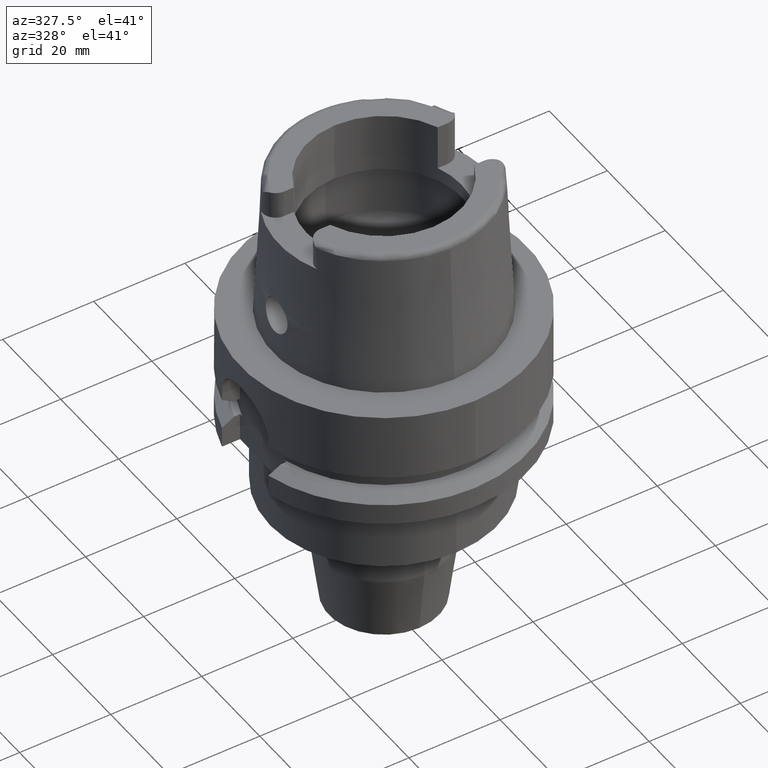
[diagram: clean part render]
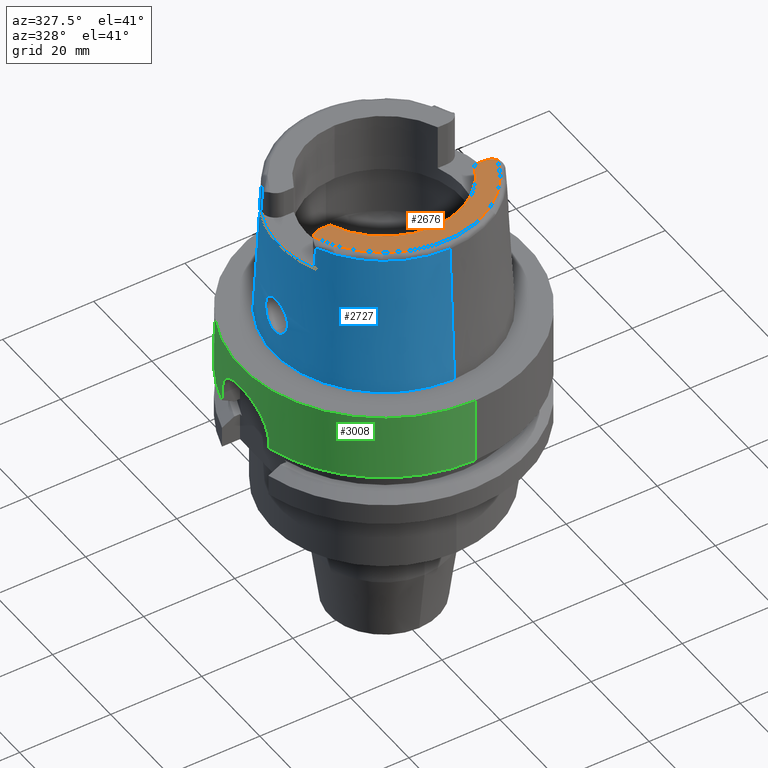
[diagram: same view with three faces highlighted in distinct colors, each labeled with its STEP entity id]
A machine part, auxiliary view with three faces highlighted in distinct colors.
Their STEP definitions:

[orange] entity #2676 — the highlighted planar face has unit normal (0, 0, 1).
#99=DIRECTION('',(-1.E0,8.644330667353E-14,0.E0));
#100=VECTOR('',#99,2.188509563969E0);
#101=CARTESIAN_POINT('',(-1.580149043603E1,-6.27E0,3.2E1));
#102=LINE('',#101,#100);
#106=CARTESIAN_POINT('',(-1.799E1,-9.15E0,3.2E1));
#107=DIRECTION('',(0.E0,0.E0,-1.E0));
#108=DIRECTION('',(-7.912216523764E-1,6.115294733787E-1,0.E0));
#109=AXIS2_PLACEMENT_3D('',#106,#107,#108);
#114=CARTESIAN_POINT('',(0.E0,0.E0,3.2E1));
#115=DIRECTION('',(0.E0,0.E0,1.E0));
#116=DIRECTION('',(-9.294994374136E-1,-3.688235294118E-1,0.E0));
#117=AXIS2_PLACEMENT_3D('',#114,#115,#116);
#122=CARTESIAN_POINT('',(0.E0,0.E0,3.2E1));
#123=DIRECTION('',(0.E0,0.E0,1.E0));
#124=DIRECTION('',(0.E0,-1.E0,0.E0));
#125=AXIS2_PLACEMENT_3D('',#122,#123,#124);
#130=CARTESIAN_POINT('',(1.799E1,-9.15E0,3.2E1));
#131=DIRECTION('',(0.E0,0.E0,-1.E0));
#132=DIRECTION('',(0.E0,1.E0,0.E0));
#133=AXIS2_PLACEMENT_3D('',#130,#131,#132);
#138=CARTESIAN_POINT('',(0.E0,0.E0,3.2E1));
#139=DIRECTION('',(0.E0,0.E0,-1.E0));
#140=DIRECTION('',(9.395199128801E-1,-3.424942821446E-1,0.E0));
#141=AXIS2_PLACEMENT_3D('',#138,#139,#140);
#323=DIRECTION('',(-1.E0,-8.806665515566E-14,0.E0));
#324=VECTOR('',#323,2.188509563969E0);
#325=CARTESIAN_POINT('',(1.799E1,-6.27E0,3.2E1));
#326=LINE('',#325,#324);
#2277=CARTESIAN_POINT('',(0.E0,-1.7E1,3.2E1));
#2278=VERTEX_POINT('',#2277);
#2279=CARTESIAN_POINT('',(-1.580149043603E1,-6.27E0,3.2E1));
#2280=VERTEX_POINT('',#2279);
#2293=CARTESIAN_POINT('',(-1.799E1,-6.27E0,3.2E1));
#2294=VERTEX_POINT('',#2293);
#2305=CARTESIAN_POINT('',(-2.026871835884E1,-7.388795116669E0,3.2E1));
#2306=VERTEX_POINT('',#2305);
#2307=CARTESIAN_POINT('',(1.580149043603E1,-6.27E0,3.2E1));
#2308=VERTEX_POINT('',#2307);
#2309=CARTESIAN_POINT('',(1.799E1,-6.27E0,3.2E1));
#2310=VERTEX_POINT('',#2309);
#2311=CARTESIAN_POINT('',(2.026871835884E1,-7.388795116670E0,3.2E1));
#2312=VERTEX_POINT('',#2311);
#2657=CARTESIAN_POINT('',(0.E0,0.E0,3.2E1));
#2658=DIRECTION('',(0.E0,0.E0,1.E0));
#2659=DIRECTION('',(0.E0,1.E0,0.E0));
#2660=AXIS2_PLACEMENT_3D('',#2657,#2658,#2659);
#2661=PLANE('',#2660);
#2663=ORIENTED_EDGE('',*,*,#2662,.T.);
#2664=ORIENTED_EDGE('',*,*,#2649,.F.);
#2665=ORIENTED_EDGE('',*,*,#2613,.T.);
#2667=ORIENTED_EDGE('',*,*,#2666,.T.);
#2669=ORIENTED_EDGE('',*,*,#2668,.F.);
#2671=ORIENTED_EDGE('',*,*,#2670,.T.);
#2673=ORIENTED_EDGE('',*,*,#2672,.T.);
#2674=EDGE_LOOP('',(#2663,#2664,#2665,#2667,#2669,#2671,#2673));
#2675=FACE_OUTER_BOUND('',#2674,.F.);
#110=CIRCLE('',#109,2.88E0);
#118=CIRCLE('',#117,1.7E1);
#126=CIRCLE('',#125,1.7E1);
#134=CIRCLE('',#133,2.88E0);
#142=CIRCLE('',#141,2.157348458609E1);
#2613=EDGE_CURVE('',#2280,#2278,#118,.T.);
#2649=EDGE_CURVE('',#2280,#2294,#102,.T.);
#2662=EDGE_CURVE('',#2306,#2294,#110,.T.);
#2666=EDGE_CURVE('',#2278,#2308,#126,.T.);
#2668=EDGE_CURVE('',#2310,#2308,#326,.T.);
#2670=EDGE_CURVE('',#2310,#2312,#134,.T.);
#2672=EDGE_CURVE('',#2312,#2306,#142,.T.);
#2676=ADVANCED_FACE('',(#2675),#2661,.T.);

[blue] entity #2727 — the highlighted conical surface has half-angle 2.862 deg.
#69=CARTESIAN_POINT('',(0.E0,0.E0,2.6E1));
#70=DIRECTION('',(0.E0,0.E0,-1.E0));
#71=DIRECTION('',(-9.068002397791E-1,-4.215605829967E-1,0.E0));
#72=AXIS2_PLACEMENT_3D('',#69,#70,#71);
#160=CARTESIAN_POINT('',(-2.086999931535E1,-9.702216590561E0,2.6E1));
#161=CARTESIAN_POINT('',(-2.086999931535E1,-9.642048820361E0,2.650727061302E1));
#162=CARTESIAN_POINT('',(-2.087000013188E1,-9.520999784311E0,2.752034962291E1));
#163=CARTESIAN_POINT('',(-2.087000056538E1,-9.336893546791E0,2.903557629453E1));
#164=CARTESIAN_POINT('',(-2.086999859286E1,-9.212633972085E0,3.004273962856E1));
#165=CARTESIAN_POINT('',(-2.086999859286E1,-9.150003160547E0,3.054568941686E1));
#170=CARTESIAN_POINT('',(-2.086999859286E1,-9.150003160547E0,3.054568941686E1));
#171=CARTESIAN_POINT('',(-2.086999859286E1,-9.145656142288E0,3.058059766505E1));
#172=CARTESIAN_POINT('',(-2.086998097130E1,-9.136996582018E0,3.065033329798E1));
#173=CARTESIAN_POINT('',(-2.086989310984E1,-9.124125562953E0,3.075513688830E1));
#174=CARTESIAN_POINT('',(-2.086979783655E1,-9.115619586658E0,3.082499216186E1));
#175=CARTESIAN_POINT('',(-2.086974104082E1,-9.111384060100E0,3.085992587382E1));
#180=DIRECTION('',(0.E0,-4.993926899645E-2,-9.987522562738E-1));
#181=VECTOR('',#180,3.089848050800E1);
#182=CARTESIAN_POINT('',(0.E0,-2.277198729362E1,3.085992712280E1));
#183=LINE('',#182,#181);
#187=CARTESIAN_POINT('',(-2.086974110884E1,9.111383541160E0,3.085992743297E1));
#188=CARTESIAN_POINT('',(-2.086979790994E1,9.115619351630E0,3.082499135271E1));
#189=CARTESIAN_POINT('',(-2.086989332434E1,9.124125752771E0,3.075512690548E1));
#190=CARTESIAN_POINT('',(-2.086998013697E1,9.136999223120E0,3.065036981059E1));
#191=CARTESIAN_POINT('',(-2.087000040551E1,9.145651821176E0,3.058051936383E1));
#192=CARTESIAN_POINT('',(-2.087000040551E1,9.149999089201E0,3.054560915664E1));
#197=CARTESIAN_POINT('',(-2.087000040551E1,9.149999089201E0,3.054560915664E1));
#198=CARTESIAN_POINT('',(-2.087000040551E1,9.212612082852E0,3.004280312577E1));
#199=CARTESIAN_POINT('',(-2.087000020370E1,9.336923098287E0,2.903562847774E1));
#200=CARTESIAN_POINT('',(-2.086999867880E1,9.521029051541E0,2.752042416354E1));
#201=CARTESIAN_POINT('',(-2.087000294700E1,9.642028220330E0,2.650729690937E1));
#202=CARTESIAN_POINT('',(-2.087000294700E1,9.702199254904E0,2.6E1));
#207=CARTESIAN_POINT('',(-2.405252611747E1,7.753366781648E-14,5.25E0));
#208=CARTESIAN_POINT('',(-2.405252611747E1,-2.983629815367E-1,5.25E0));
#209=CARTESIAN_POINT('',(-2.403759799135E1,-8.961018290316E-1,
5.321776949866E0));
#210=CARTESIAN_POINT('',(-2.397447440240E1,-1.741926226861E0,5.638186774740E0));
#211=CARTESIAN_POINT('',(-2.388062072493E1,-2.496397334420E0,6.152590040285E0));
#212=CARTESIAN_POINT('',(-2.377309800171E1,-3.106949365202E0,6.834341896780E0));
#213=CARTESIAN_POINT('',(-2.367028886150E1,-3.538310063109E0,7.649796871211E0));
#214=CARTESIAN_POINT('',(-2.359066284660E1,-3.758485061680E0,8.537441117560E0));
#215=CARTESIAN_POINT('',(-2.354414989533E1,-3.759354895679E0,9.452819881269E0));
#216=CARTESIAN_POINT('',(-2.353371335133E1,-3.543673124263E0,1.033330566560E1));
#217=CARTESIAN_POINT('',(-2.355357008821E1,-3.124309553114E0,1.113832511195E1));
#218=CARTESIAN_POINT('',(-2.359224647702E1,-2.528027371299E0,1.181947570822E1));
#219=CARTESIAN_POINT('',(-2.363616440138E1,-1.769185514866E0,1.234926733547E1));
#220=CARTESIAN_POINT('',(-2.366940988559E1,-9.074805174541E-1,
1.267673524819E1));
#221=CARTESIAN_POINT('',(-2.367751368058E1,-3.018728104204E-1,1.275E1));
#222=CARTESIAN_POINT('',(-2.367751368058E1,0.E0,1.275E1));
#227=CARTESIAN_POINT('',(-2.367751368058E1,0.E0,1.275E1));
#228=CARTESIAN_POINT('',(-2.367751368058E1,3.009620480477E-1,1.275E1));
#229=CARTESIAN_POINT('',(-2.366945437572E1,9.043356862045E-1,1.267710807503E1));
#230=CARTESIAN_POINT('',(-2.363653071782E1,1.761167725127E0,1.235299167880E1));
#231=CARTESIAN_POINT('',(-2.359289117643E1,2.517930243470E0,1.182808447992E1));
#232=CARTESIAN_POINT('',(-2.355410512668E1,3.115618229274E0,1.115109512899E1));
#233=CARTESIAN_POINT('',(-2.353374050285E1,3.539883651809E0,1.034442728618E1));
#234=CARTESIAN_POINT('',(-2.354389268323E1,3.757980069635E0,9.462273260167E0));
#235=CARTESIAN_POINT('',(-2.358959342546E1,3.759759824688E0,8.554435323220E0));
#236=CARTESIAN_POINT('',(-2.366772333814E1,3.546890154093E0,7.674289460787E0));
#237=CARTESIAN_POINT('',(-2.376944026279E1,3.124538664881E0,6.860013219001E0));
#238=CARTESIAN_POINT('',(-2.387746588807E1,2.517820684655E0,6.170704871594E0));
#239=CARTESIAN_POINT('',(-2.397311171621E1,1.757542030497E0,5.645060882554E0));
#240=CARTESIAN_POINT('',(-2.403756404153E1,8.999352463688E-1,5.321912240457E0));
#241=CARTESIAN_POINT('',(-2.405252611747E1,2.990540645366E-1,5.25E0));
#242=CARTESIAN_POINT('',(-2.405252611747E1,7.753366781648E-14,5.25E0));
#293=CARTESIAN_POINT('',(0.E0,0.E0,3.085992712280E1));
#294=DIRECTION('',(0.E0,0.E0,-1.E0));
#295=DIRECTION('',(0.E0,-1.E0,0.E0));
#296=AXIS2_PLACEMENT_3D('',#293,#294,#295);
#301=CARTESIAN_POINT('',(0.E0,0.E0,3.085992712280E1));
#302=DIRECTION('',(0.E0,0.E0,-1.E0));
#303=DIRECTION('',(-6.539142454762E-4,-9.999997861981E-1,0.E0));
#304=AXIS2_PLACEMENT_3D('',#301,#302,#303);
#498=CARTESIAN_POINT('',(0.E0,0.E0,3.085992712280E1));
#499=DIRECTION('',(0.E0,0.E0,-1.E0));
#500=DIRECTION('',(-9.164655183266E-1,4.001136759952E-1,0.E0));
#501=AXIS2_PLACEMENT_3D('',#498,#499,#500);
#561=DIRECTION('',(0.E0,4.993926899645E-2,-9.987522562738E-1));
#562=VECTOR('',#561,3.089848050800E1);
#563=CARTESIAN_POINT('',(0.E0,2.277198729362E1,3.085992712280E1));
#564=LINE('',#563,#562);
#666=CARTESIAN_POINT('',(0.E0,0.E0,-1.705302565824E-12));
#667=DIRECTION('',(0.E0,0.E0,1.E0));
#668=DIRECTION('',(0.E0,1.E0,0.E0));
#669=AXIS2_PLACEMENT_3D('',#666,#667,#668);
#2285=CARTESIAN_POINT('',(-2.086999931535E1,-9.702216590561E0,2.6E1));
#2286=VERTEX_POINT('',#2285);
#2287=CARTESIAN_POINT('',(-2.087E1,9.702213322399E0,2.6E1));
#2288=VERTEX_POINT('',#2287);
#2313=VERTEX_POINT('',#187);
#2314=VERTEX_POINT('',#192);
#2315=VERTEX_POINT('',#165);
#2316=VERTEX_POINT('',#175);
#2317=CARTESIAN_POINT('',(-1.489092688910E-2,-2.277198242492E1,
3.085992712280E1));
#2318=VERTEX_POINT('',#2317);
#2319=CARTESIAN_POINT('',(0.E0,-2.277198729362E1,3.085992712280E1));
#2320=VERTEX_POINT('',#2319);
#2321=CARTESIAN_POINT('',(0.E0,-2.431503482329E1,-9.841016890277E-13));
#2322=VERTEX_POINT('',#2321);
#2323=CARTESIAN_POINT('',(0.E0,2.431503482329E1,-1.705302565824E-12));
#2324=VERTEX_POINT('',#2323);
#2325=CARTESIAN_POINT('',(0.E0,2.277198729362E1,3.085992712280E1));
#2326=VERTEX_POINT('',#2325);
#2327=VERTEX_POINT('',#207);
#2328=VERTEX_POINT('',#222);
#2694=CARTESIAN_POINT('',(0.E0,0.E0,1.542996356140E1));
#2695=DIRECTION('',(0.E0,0.E0,-1.E0));
#2696=DIRECTION('',(0.E0,-1.E0,0.E0));
#2697=AXIS2_PLACEMENT_3D('',#2694,#2695,#2696);
#2698=CONICAL_SURFACE('',#2697,2.354351105845E1,2.8625E0);
#2699=ORIENTED_EDGE('',*,*,#2632,.F.);
#2701=ORIENTED_EDGE('',*,*,#2700,.T.);
#2702=ORIENTED_EDGE('',*,*,#2682,.T.);
#2704=ORIENTED_EDGE('',*,*,#2703,.F.);
#2706=ORIENTED_EDGE('',*,*,#2705,.F.);
#2708=ORIENTED_EDGE('',*,*,#2707,.T.);
#2710=ORIENTED_EDGE('',*,*,#2709,.F.);
#2712=ORIENTED_EDGE('',*,*,#2711,.F.);
#2714=ORIENTED_EDGE('',*,*,#2713,.F.);
#2716=ORIENTED_EDGE('',*,*,#2715,.T.);
#2718=ORIENTED_EDGE('',*,*,#2717,.T.);
#2719=EDGE_LOOP('',(#2699,#2701,#2702,#2704,#2706,#2708,#2710,#2712,#2714,#2716,
#2718));
#2720=FACE_OUTER_BOUND('',#2719,.F.);
#2722=ORIENTED_EDGE('',*,*,#2721,.T.);
#2724=ORIENTED_EDGE('',*,*,#2723,.T.);
#2725=EDGE_LOOP('',(#2722,#2724));
#2726=FACE_BOUND('',#2725,.F.);
#73=CIRCLE('',#72,2.301499170874E1);
#166=B_SPLINE_CURVE_WITH_KNOTS('',3,(#160,#161,#162,#163,#164,#165),
.UNSPECIFIED.,.F.,.F.,(4,1,1,4),(0.E0,3.333333333333E-1,6.666666666667E-1,1.E0),
.UNSPECIFIED.);
#176=B_SPLINE_CURVE_WITH_KNOTS('',3,(#170,#171,#172,#173,#174,#175),
.UNSPECIFIED.,.F.,.F.,(4,1,1,4),(0.E0,3.333333333333E-1,6.666666666667E-1,1.E0),
.UNSPECIFIED.);
#193=B_SPLINE_CURVE_WITH_KNOTS('',3,(#187,#188,#189,#190,#191,#192),
.UNSPECIFIED.,.F.,.F.,(4,1,1,4),(0.E0,3.333333333333E-1,6.666666666667E-1,1.E0),
.UNSPECIFIED.);
#203=B_SPLINE_CURVE_WITH_KNOTS('',3,(#197,#198,#199,#200,#201,#202),
.UNSPECIFIED.,.F.,.F.,(4,1,1,4),(0.E0,3.333333333333E-1,6.666666666667E-1,1.E0),
.UNSPECIFIED.);
#223=B_SPLINE_CURVE_WITH_KNOTS('',3,(#207,#208,#209,#210,#211,#212,#213,#214,
#215,#216,#217,#218,#219,#220,#221,#222),.UNSPECIFIED.,.F.,.F.,(4,1,1,1,1,1,1,1,
1,1,1,1,1,4),(0.E0,7.692307692308E-2,1.538461538462E-1,2.307692307692E-1,
3.076923076923E-1,3.846153846154E-1,4.615384615385E-1,5.384615384615E-1,
6.153846153846E-1,6.923076923077E-1,7.692307692308E-1,8.461538461538E-1,
9.230769230769E-1,1.E0),.UNSPECIFIED.);
#243=B_SPLINE_CURVE_WITH_KNOTS('',3,(#227,#228,#229,#230,#231,#232,#233,#234,
#235,#236,#237,#238,#239,#240,#241,#242),.UNSPECIFIED.,.F.,.F.,(4,1,1,1,1,1,1,1,
1,1,1,1,1,4),(0.E0,7.692307692308E-2,1.538461538462E-1,2.307692307692E-1,
3.076923076923E-1,3.846153846154E-1,4.615384615385E-1,5.384615384615E-1,
6.153846153846E-1,6.923076923077E-1,7.692307692308E-1,8.461538461538E-1,
9.230769230769E-1,1.E0),.UNSPECIFIED.);
#297=CIRCLE('',#296,2.277198729362E1);
#305=CIRCLE('',#304,2.277198729362E1);
#502=CIRCLE('',#501,2.277198729362E1);
#670=CIRCLE('',#669,2.431503482329E1);
#2632=EDGE_CURVE('',#2286,#2288,#73,.T.);
#2682=EDGE_CURVE('',#2315,#2316,#176,.T.);
#2700=EDGE_CURVE('',#2286,#2315,#166,.T.);
#2703=EDGE_CURVE('',#2318,#2316,#305,.T.);
#2705=EDGE_CURVE('',#2320,#2318,#297,.T.);
#2707=EDGE_CURVE('',#2320,#2322,#183,.T.);
#2709=EDGE_CURVE('',#2324,#2322,#670,.T.);
#2711=EDGE_CURVE('',#2326,#2324,#564,.T.);
#2713=EDGE_CURVE('',#2313,#2326,#502,.T.);
#2715=EDGE_CURVE('',#2313,#2314,#193,.T.);
#2717=EDGE_CURVE('',#2314,#2288,#203,.T.);
#2721=EDGE_CURVE('',#2327,#2328,#223,.T.);
#2723=EDGE_CURVE('',#2328,#2327,#243,.T.);
#2727=ADVANCED_FACE('',(#2720,#2726),#2698,.T.);

[green] entity #3008 — the highlighted cylindrical surface (partial cylindrical patch) has radius 31.5 mm, axis along (0, 0, 1).
#642=CARTESIAN_POINT('',(0.E0,0.E0,-1.421085471520E-14));
#643=DIRECTION('',(0.E0,0.E0,-1.E0));
#644=DIRECTION('',(0.E0,-1.E0,0.E0));
#645=AXIS2_PLACEMENT_3D('',#642,#643,#644);
#674=DIRECTION('',(-1.431540360012E-6,-1.176472697512E-6,-9.999999999983E-1));
#675=VECTOR('',#674,9.622451541726E0);
#676=CARTESIAN_POINT('',(-2.E1,2.433618704728E1,-5.000000000001E0));
#677=LINE('',#676,#675);
#681=DIRECTION('',(0.E0,-2.672583210396E-14,-1.E0));
#682=VECTOR('',#681,1.462250092524E1);
#683=CARTESIAN_POINT('',(0.E0,-3.15E1,1.894780628694E-14));
#684=LINE('',#683,#682);
#688=DIRECTION('',(-7.652368237102E-8,2.914370082179E-7,1.E0));
#689=VECTOR('',#688,1.622496632714E0);
#690=CARTESIAN_POINT('',(-3.046719534900E1,-8.000000472856E0,
-1.462249663271E1));
#691=LINE('',#690,#689);
#695=DIRECTION('',(-1.697581195195E-8,-6.464639300305E-8,-1.E0));
#696=VECTOR('',#695,1.622501877402E0);
#697=CARTESIAN_POINT('',(-3.046719547316E1,8.E0,-1.3E1));
#698=LINE('',#697,#696);
#702=DIRECTION('',(9.894060569839E-7,1.203919407604E-6,9.999999999988E-1));
#703=VECTOR('',#702,2.510797856236E0);
#704=CARTESIAN_POINT('',(-2.433618953148E1,1.999999697720E1,-1.462251175989E1));
#705=LINE('',#704,#703);
#709=CARTESIAN_POINT('',(-2.433618704728E1,2.E1,-1.211171390366E1));
#710=CARTESIAN_POINT('',(-2.433618704728E1,2.E1,-1.187977372849E1));
#711=CARTESIAN_POINT('',(-2.431967290052E1,2.002011943088E1,-1.141747341825E1));
#712=CARTESIAN_POINT('',(-2.424524770411E1,2.011034050355E1,-1.072771821829E1));
#713=CARTESIAN_POINT('',(-2.411964511851E1,2.026106731111E1,-1.004479280919E1));
#714=CARTESIAN_POINT('',(-2.394165815227E1,2.047144447062E1,-9.375611571982E0));
#715=CARTESIAN_POINT('',(-2.370768283585E1,2.074243216496E1,-8.721132766513E0));
#716=CARTESIAN_POINT('',(-2.341497015444E1,2.107290139819E1,-8.088372014913E0));
#717=CARTESIAN_POINT('',(-2.305738752231E1,2.146431457704E1,-7.479003601040E0));
#718=CARTESIAN_POINT('',(-2.262953392187E1,2.191581789721E1,-6.899684978560E0));
#719=CARTESIAN_POINT('',(-2.212344133567E1,2.242769127021E1,-6.355027245764E0));
#720=CARTESIAN_POINT('',(-2.152829938901E1,2.300087846520E1,-5.850146414540E0));
#721=CARTESIAN_POINT('',(-2.083305659176E1,2.363404649954E1,-5.392532518473E0));
#722=CARTESIAN_POINT('',(-2.029155541786E1,2.409658055733E1,-5.123440477687E0));
#723=CARTESIAN_POINT('',(-2.E1,2.433618704728E1,-5.000000000001E0));
#740=CARTESIAN_POINT('',(-2.000001377493E1,2.433617572673E1,-1.462245154171E1));
#821=CARTESIAN_POINT('',(-2.433618953148E1,1.999999697720E1,-1.462251175989E1));
#838=CARTESIAN_POINT('',(0.E0,0.E0,-1.462250092524E1));
#839=DIRECTION('',(0.E0,0.E0,1.E0));
#840=DIRECTION('',(-7.725773665802E-1,6.349206349206E-1,0.E0));
#841=AXIS2_PLACEMENT_3D('',#838,#839,#840);
#846=CARTESIAN_POINT('',(-3.046719550070E1,7.999999895111E0,-1.462250187740E1));
#870=CARTESIAN_POINT('',(-3.046719547316E1,8.E0,-1.3E1));
#871=CARTESIAN_POINT('',(-3.046719547316E1,8.E0,-1.245224009791E1));
#872=CARTESIAN_POINT('',(-3.049727302638E1,7.887058350244E0,-1.135073932770E1));
#873=CARTESIAN_POINT('',(-3.062689474047E1,7.375462160494E0,-9.752102891592E0));
#874=CARTESIAN_POINT('',(-3.082074443425E1,6.532773675591E0,-8.278876910032E0));
#875=CARTESIAN_POINT('',(-3.104430627716E1,5.390237509935E0,-7.006967026638E0));
#876=CARTESIAN_POINT('',(-3.125563060177E1,4.008871035996E0,-6.008196342126E0));
#877=CARTESIAN_POINT('',(-3.141705820568E1,2.464778745014E0,-5.328000599818E0));
#878=CARTESIAN_POINT('',(-3.150356819386E1,8.304199367557E-1,
-4.985634645714E0));
#879=CARTESIAN_POINT('',(-3.150352681394E1,-8.321668193317E-1,
-4.985822560260E0));
#880=CARTESIAN_POINT('',(-3.141693350906E1,-2.466336997352E0,
-5.328506033320E0));
#881=CARTESIAN_POINT('',(-3.125544512096E1,-4.010327316653E0,
-6.009023094849E0));
#882=CARTESIAN_POINT('',(-3.104408258012E1,-5.391520309843E0,
-7.008128831585E0));
#883=CARTESIAN_POINT('',(-3.082053941872E1,-6.533720743411E0,
-8.280182523155E0));
#884=CARTESIAN_POINT('',(-3.062672190153E1,-7.376197391333E0,
-9.753750358743E0));
#885=CARTESIAN_POINT('',(-3.049718863966E1,-7.887319804450E0,
-1.135225939251E1));
#886=CARTESIAN_POINT('',(-3.046719547316E1,-8.E0,-1.245284899224E1));
#887=CARTESIAN_POINT('',(-3.046719547316E1,-8.E0,-1.3E1));
#1331=CARTESIAN_POINT('',(0.E0,0.E0,-1.462250092524E1));
#1332=DIRECTION('',(0.E0,0.E0,1.E0));
#1333=DIRECTION('',(-9.672125547036E-1,-2.539682539683E-1,0.E0));
#1334=AXIS2_PLACEMENT_3D('',#1331,#1332,#1333);
#1401=DIRECTION('',(0.E0,2.672583210396E-14,-1.E0));
#1402=VECTOR('',#1401,1.462250092524E1);
#1403=CARTESIAN_POINT('',(0.E0,3.15E1,1.894780628694E-14));
#1404=LINE('',#1403,#1402);
#1462=CARTESIAN_POINT('',(0.E0,0.E0,-1.462250092524E1));
#1463=DIRECTION('',(0.E0,0.E0,1.E0));
#1464=DIRECTION('',(0.E0,1.E0,0.E0));
#1465=AXIS2_PLACEMENT_3D('',#1462,#1463,#1464);
#2471=VERTEX_POINT('',#740);
#2472=CARTESIAN_POINT('',(-2.E1,2.433618704728E1,-5.000000000001E0));
#2473=VERTEX_POINT('',#2472);
#2500=CARTESIAN_POINT('',(-3.046719547316E1,-8.E0,-1.3E1));
#2501=VERTEX_POINT('',#2500);
#2502=CARTESIAN_POINT('',(-3.046719534900E1,-8.000000472856E0,
-1.462249663271E1));
#2503=VERTEX_POINT('',#2502);
#2523=VERTEX_POINT('',#846);
#2524=CARTESIAN_POINT('',(-3.046719547316E1,8.E0,-1.3E1));
#2525=VERTEX_POINT('',#2524);
#2579=CARTESIAN_POINT('',(0.E0,-3.15E1,-1.462250092524E1));
#2580=VERTEX_POINT('',#2579);
#2582=CARTESIAN_POINT('',(0.E0,3.15E1,-1.462250092524E1));
#2583=VERTEX_POINT('',#2582);
#2584=VERTEX_POINT('',#821);
#2585=CARTESIAN_POINT('',(0.E0,3.15E1,1.894780628694E-14));
#2586=VERTEX_POINT('',#2585);
#2587=CARTESIAN_POINT('',(0.E0,-3.15E1,-1.421085471520E-14));
#2588=VERTEX_POINT('',#2587);
#2589=CARTESIAN_POINT('',(-2.433618704728E1,2.E1,-1.211171390366E1));
#2590=VERTEX_POINT('',#2589);
#2978=CARTESIAN_POINT('',(0.E0,0.E0,-7.51E1));
#2979=DIRECTION('',(0.E0,0.E0,1.E0));
#2980=DIRECTION('',(0.E0,1.E0,0.E0));
#2981=AXIS2_PLACEMENT_3D('',#2978,#2979,#2980);
#2982=CYLINDRICAL_SURFACE('',#2981,3.15E1);
#2984=ORIENTED_EDGE('',*,*,#2983,.T.);
#2986=ORIENTED_EDGE('',*,*,#2985,.F.);
#2988=ORIENTED_EDGE('',*,*,#2987,.F.);
#2989=ORIENTED_EDGE('',*,*,#2967,.F.);
#2991=ORIENTED_EDGE('',*,*,#2990,.T.);
#2993=ORIENTED_EDGE('',*,*,#2992,.F.);
#2995=ORIENTED_EDGE('',*,*,#2994,.T.);
#2997=ORIENTED_EDGE('',*,*,#2996,.F.);
#2999=ORIENTED_EDGE('',*,*,#2998,.T.);
#3001=ORIENTED_EDGE('',*,*,#3000,.F.);
#3003=ORIENTED_EDGE('',*,*,#3002,.T.);
#3005=ORIENTED_EDGE('',*,*,#3004,.T.);
#3006=EDGE_LOOP('',(#2984,#2986,#2988,#2989,#2991,#2993,#2995,#2997,#2999,#3001,
#3003,#3005));
#3007=FACE_OUTER_BOUND('',#3006,.F.);
#646=CIRCLE('',#645,3.15E1);
#724=B_SPLINE_CURVE_WITH_KNOTS('',3,(#709,#710,#711,#712,#713,#714,#715,#716,
#717,#718,#719,#720,#721,#722,#723),.UNSPECIFIED.,.F.,.F.,(4,1,1,1,1,1,1,1,1,1,
1,1,4),(0.E0,8.333333333333E-2,1.666666666667E-1,2.5E-1,3.333333333333E-1,
4.166666666667E-1,5.E-1,5.833333333333E-1,6.666666666667E-1,7.5E-1,
8.333333333333E-1,9.166666666667E-1,1.E0),.UNSPECIFIED.);
#842=CIRCLE('',#841,3.15E1);
#888=B_SPLINE_CURVE_WITH_KNOTS('',3,(#870,#871,#872,#873,#874,#875,#876,#877,
#878,#879,#880,#881,#882,#883,#884,#885,#886,#887),.UNSPECIFIED.,.F.,.F.,(4,1,1,
1,1,1,1,1,1,1,1,1,1,1,1,4),(0.E0,6.666666666667E-2,1.333333333333E-1,2.E-1,
2.666666666667E-1,3.333333333333E-1,4.E-1,4.666666666667E-1,5.333333333333E-1,
6.E-1,6.666666666667E-1,7.333333333333E-1,8.E-1,8.666666666667E-1,
9.333333333333E-1,1.E0),.UNSPECIFIED.);
#1335=CIRCLE('',#1334,3.15E1);
#1466=CIRCLE('',#1465,3.15E1);
#2967=EDGE_CURVE('',#2588,#2586,#646,.T.);
#2983=EDGE_CURVE('',#2473,#2471,#677,.T.);
#2985=EDGE_CURVE('',#2583,#2471,#1466,.T.);
#2987=EDGE_CURVE('',#2586,#2583,#1404,.T.);
#2990=EDGE_CURVE('',#2588,#2580,#684,.T.);
#2992=EDGE_CURVE('',#2503,#2580,#1335,.T.);
#2994=EDGE_CURVE('',#2503,#2501,#691,.T.);
#2996=EDGE_CURVE('',#2525,#2501,#888,.T.);
#2998=EDGE_CURVE('',#2525,#2523,#698,.T.);
#3000=EDGE_CURVE('',#2584,#2523,#842,.T.);
#3002=EDGE_CURVE('',#2584,#2590,#705,.T.);
#3004=EDGE_CURVE('',#2590,#2473,#724,.T.);
#3008=ADVANCED_FACE('',(#3007),#2982,.T.);